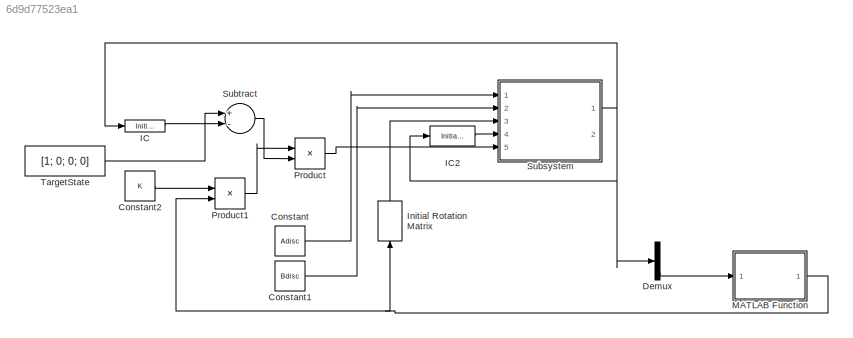
MODEL slx_6d9d77523ea1
KIND model
CONFIG AbsTol = auto
CONFIG EnableMultiTasking = off
CONFIG FixedStep = auto
CONFIG MaxStep = auto
CONFIG MinStep = auto
CONFIG RelTol = 1e-3
CONFIG SampleTimeConstraint = Unconstrained
CONFIG Solver = VariableStepAuto
CONFIG SolverName = VariableStepAuto
CONFIG StartTime = 0.0
CONFIG StopTime = 1000.0
BLOCK [Constant] Constant
  Value = Adisc
BLOCK [Constant] Constant1
  Value = Bdisc
BLOCK [Constant] Constant2
  Value = K
  VectorParams1D = off
BLOCK [Demux] Demux
  DisplayOption = bar
  Ports = [1, 4]
BLOCK [InitialCondition] IC
  Value = [0; 0; 0; 0]
BLOCK [InitialCondition] IC2
  Value = [0; 0; 0; 0]
BLOCK [InitialCondition] Initial Rotation Matrix 
  Value = [cos(thetaR) -sin(thetaR) 0 0; sin(thetaR) cos(thetaR) 0 0; 0 0 1 0; 0 0 0 1]
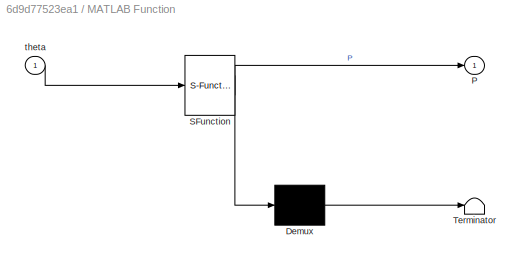
BLOCK [SubSystem] MATLAB Function
  ErrorFcn = Stateflow.Translate.translate
  PermitHierarchicalResolution = ExplicitOnly
  Ports = [1, 1]
  RequestExecContextInheritance = off
  SFBlockType = MATLAB Function
  TreatAsAtomicUnit = on
BLOCK [Demux] MATLAB Function/ Demux 
  Outputs = 1
  Ports = [1, 1]
BLOCK [S-Function] MATLAB Function/ SFunction 
  EnableBusSupport = on
  FunctionName = sf_sfun
  PortCounts = [1 2]
  Ports = [1, 2]
  SFcnIsStateOwnerBlock = off
  SFunctionDeploymentMode = off
  Tag = Stateflow S-Function VelocityModel 2
BLOCK [Terminator] MATLAB Function/ Terminator 
BLOCK [Outport] MATLAB Function/P
  IconDisplay = Port number
BLOCK [Inport] MATLAB Function/theta
  IconDisplay = Port number
BLOCK [Product] Product
  InputSameDT = off
  Multiplication = Matrix(*)
  OutDataTypeStr = Inherit: Inherit via internal rule
  Ports = [2, 1]
  RndMeth = Floor
  SaturateOnIntegerOverflow = off
BLOCK [Product] Product1
  InputSameDT = off
  OutDataTypeStr = Inherit: Inherit via internal rule
  Ports = [2, 1]
  RndMeth = Floor
  SaturateOnIntegerOverflow = off
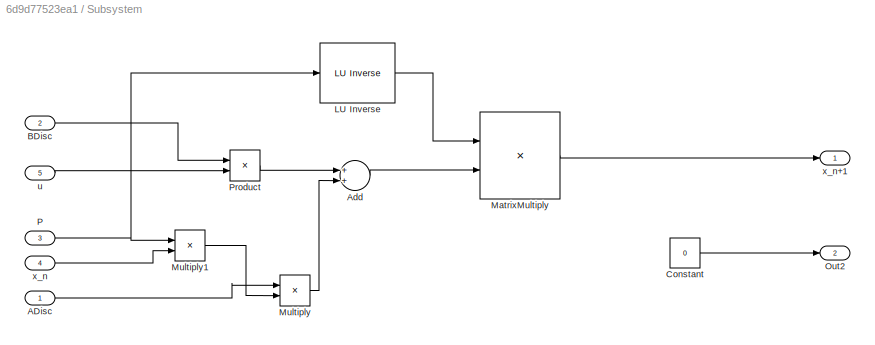
BLOCK [SubSystem] Subsystem
  Ports = [5, 2]
  RequestExecContextInheritance = off
BLOCK [Reference] Subsystem/ LU Inverse  REF=dspinverses/ LU Inverse
  Ports = [1, 1]
  SourceBlock = dspinverses/ LU Inverse
  SourceProductBaseCode = DS
  SourceProductName = DSP System Toolbox
  SourceType = LU Inverse
BLOCK [Inport] Subsystem/ADisc
  IconDisplay = Port number
BLOCK [Sum] Subsystem/Add
  InputSameDT = off
  OutDataTypeStr = Inherit: Inherit via internal rule
  Ports = [2, 1]
  SaturateOnIntegerOverflow = off
BLOCK [Inport] Subsystem/BDisc
  IconDisplay = Port number
  Port = 2
BLOCK [Constant] Subsystem/Constant
  Value = 0
BLOCK [Product] Subsystem/MatrixMultiply
  InputSameDT = off
  Multiplication = Matrix(*)
  OutDataTypeStr = Inherit: Inherit via internal rule
  Ports = [2, 1]
  RndMeth = Floor
  SaturateOnIntegerOverflow = off
BLOCK [Product] Subsystem/Multiply
  InputSameDT = off
  Multiplication = Matrix(*)
  OutDataTypeStr = Inherit: Inherit via internal rule
  Ports = [2, 1]
  RndMeth = Floor
  SaturateOnIntegerOverflow = off
BLOCK [Product] Subsystem/Multiply1
  InputSameDT = off
  Multiplication = Matrix(*)
  OutDataTypeStr = Inherit: Inherit via internal rule
  Ports = [2, 1]
  RndMeth = Floor
  SaturateOnIntegerOverflow = off
BLOCK [Outport] Subsystem/Out2
  IconDisplay = Port number
  Port = 2
BLOCK [Inport] Subsystem/P
  IconDisplay = Port number
  Port = 3
BLOCK [Product] Subsystem/Product
  InputSameDT = off
  Multiplication = Matrix(*)
  OutDataTypeStr = Inherit: Inherit via internal rule
  Ports = [2, 1]
  RndMeth = Floor
  SaturateOnIntegerOverflow = off
BLOCK [Inport] Subsystem/u 
  IconDisplay = Port number
  Port = 5
BLOCK [Inport] Subsystem/x_n
  IconDisplay = Port number
  Port = 4
BLOCK [Outport] Subsystem/x_n+1
  IconDisplay = Port number
BLOCK [Sum] Subtract
  InputSameDT = off
  Inputs = +-
  OutDataTypeStr = Inherit: Inherit via internal rule
  Ports = [2, 1]
  SaturateOnIntegerOverflow = off
BLOCK [Constant] TargetState 
  Value = [1; 0; 0; 0]
  VectorParams1D = off
LINE Constant1:1 -> Subsystem:2
LINE Constant2:1 -> Product1:1
LINE Constant:1 -> Subsystem:1
LINE Demux:4 -> MATLAB Function:1
LINE IC2:1 -> Subsystem:4
LINE IC:1 -> Subtract:2
LINE Initial Rotation Matrix :1 -> Subsystem:3
NET MATLAB Function:1 -> Initial Rotation Matrix :1, Product1:2
LINE Product1:1 -> Product:1
LINE Product:1 -> Subsystem:5
LINE Subsystem/ LU Inverse:1 -> Subsystem/MatrixMultiply:1
LINE Subsystem/ADisc:1 -> Subsystem/Multiply:1
LINE Subsystem/Add:1 -> Subsystem/MatrixMultiply:2
LINE Subsystem/BDisc:1 -> Subsystem/Product:1
LINE Subsystem/Constant:1 -> Subsystem/Out2:1
LINE Subsystem/MatrixMultiply:1 -> Subsystem/x_n+1:1
LINE Subsystem/Multiply1:1 -> Subsystem/Multiply:2
LINE Subsystem/Multiply:1 -> Subsystem/Add:2
NET Subsystem/P:1 -> Subsystem/ LU Inverse:1, Subsystem/Multiply1:1
LINE Subsystem/Product:1 -> Subsystem/Add:1
LINE Subsystem/u :1 -> Subsystem/Product:2
LINE Subsystem/x_n:1 -> Subsystem/Multiply1:2
NET Subsystem:1 -> Demux:1, IC2:1, IC:1
LINE Subtract:1 -> Product:2
LINE TargetState :1 -> Subtract:1
note: NET lines group one-source signal fan-out (src -> all destinations, sorted); 1:1 wires keep LINE
CHART MATLAB Function states=1 transitions=1
  STATE_LABEL 'eML_blk_kernel()'
  STATE_LABEL 'SCRIPT:\nfunction P = RotationM(theta)\nP = [\n    cos(theta), -sin(theta), 0, 0;\n    sin(theta), cos(theta), 0, 0;\n    0, 0, 1, 0;\n    0, 0, 0, 1;\n];'
